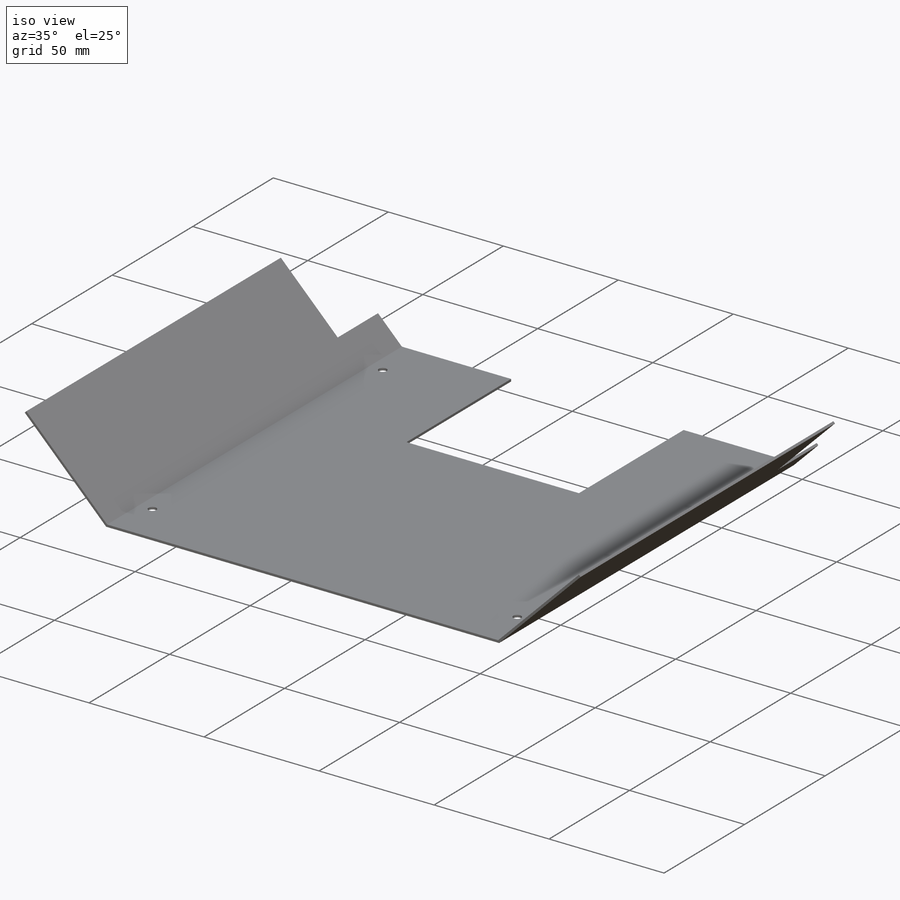
[diagram: iso view]
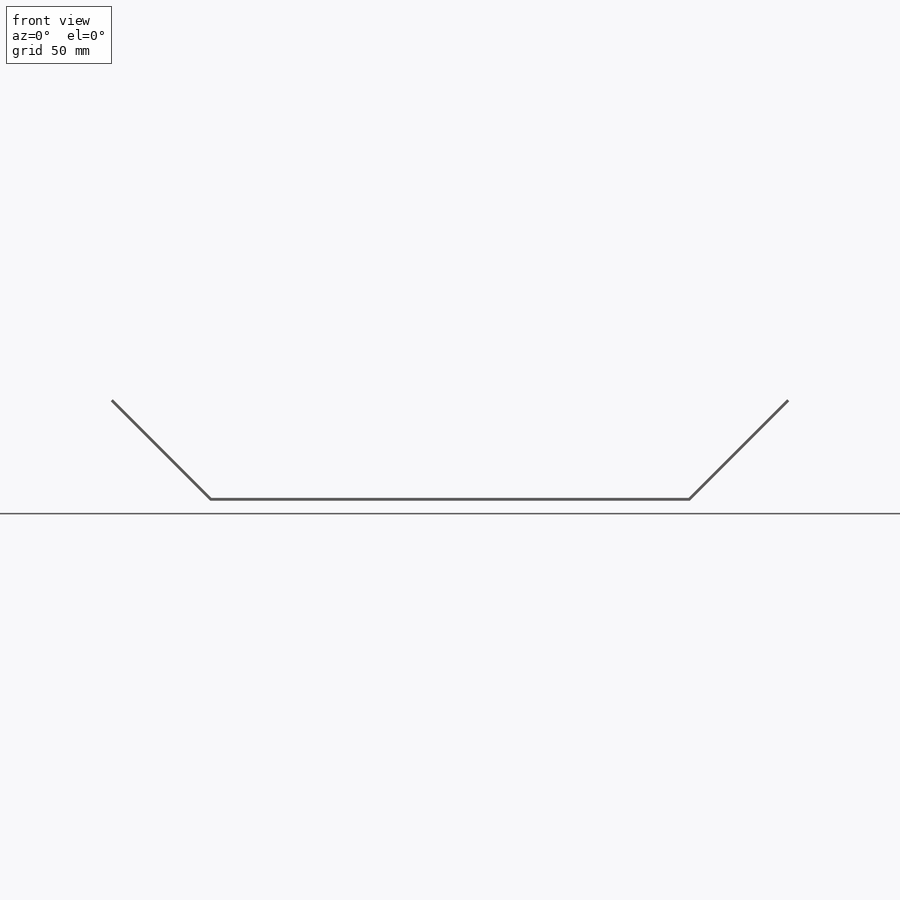
[diagram: front view]
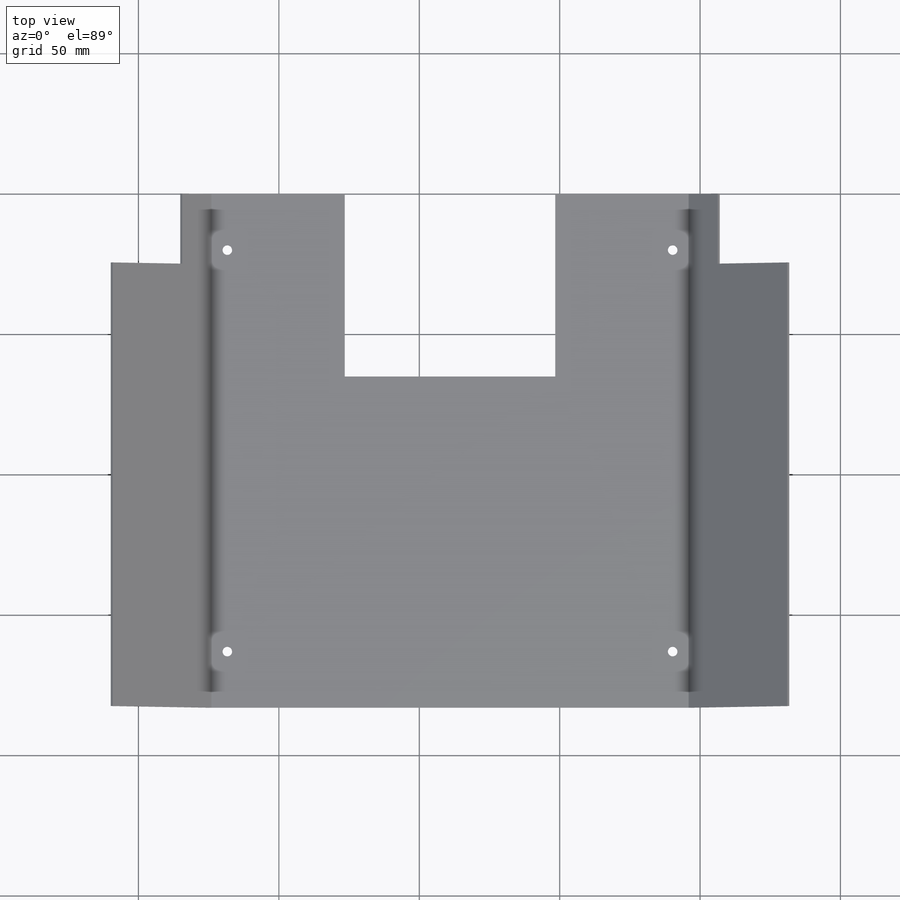
[diagram: top view]
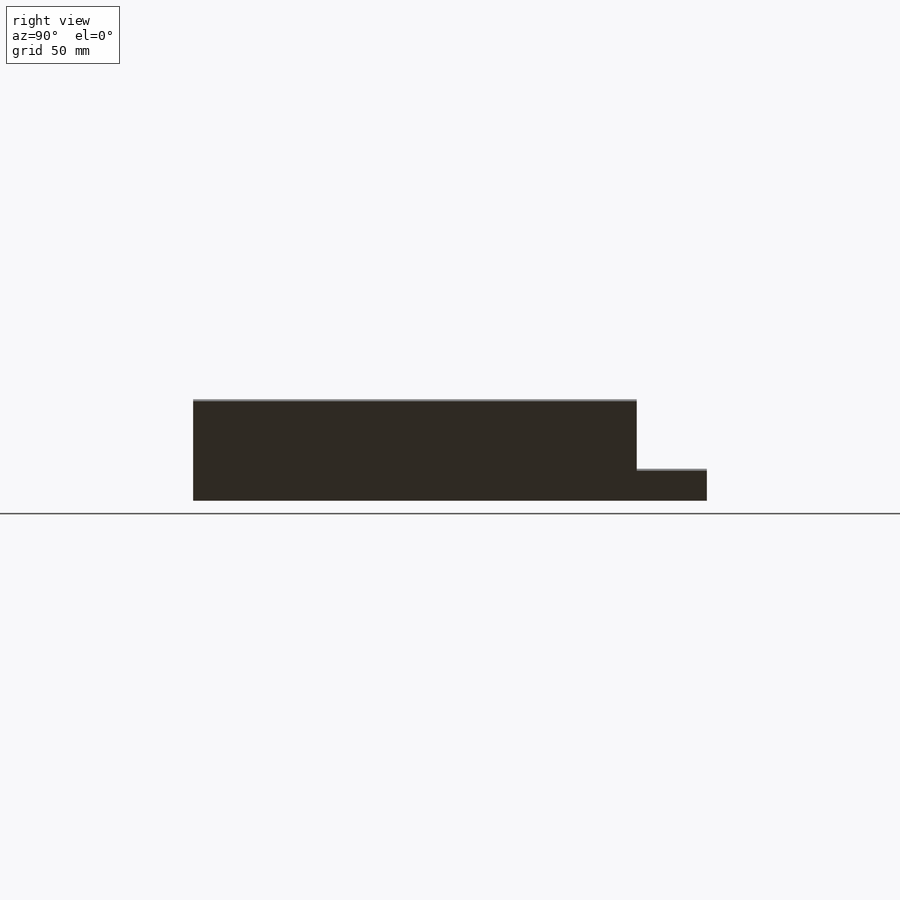
[diagram: right view]
SOLIDWORKS PART (.sldprt)
format: sldprt  version: not decoded by parser v0  size: 230,912 bytes
history: native  units: mm
features: sketch x7, plane x3, cut_extrude x3, material x1, hole x1 (+13 scaffold rows collapsed)
feature tree (28):
  scaffold x13  (default folders/planes/origin — collapsed)
  material  "Matériau <non spécifié>"
  plane  "Plan de face"
  plane  "Plan de dessus"
  plane  "Plan de droite"
  sketch  "Esquisse2"  dims[c1.D1=170.0mm c1.D2=49.658mm c1.D3=49.658mm c1.D4=35.114mm c1.D5=~35.113017mm c2.D1=183.0mm c2.D5=1.0mm c2.D6=1.0mm c2.D7=5.0mm]
  sketch  "Esquisse8"  dims[D1=47.5mm D2=47.5mm D3=65.0mm]
  cut_extrude  "Enlèv. mat.-Extru.2"  Depth=1mm
  sketch  "Esquisse12"  dims[D1=5.7mm D2=5.7mm D3=5.7mm D4=5.7mm D5=20.0mm D6=20.0mm D7=20.0mm D8=20.0mm]
  hole  "Dégagement M32"  Diameter=3.4mm Depth=1mm
  sketch  "Esquisse14"
  sketch  "Esquisse13"  dims[hole-wizard template sketch: 60 standard entries collapsed; hole parameters kept: c18.Profondeur du perçage jusqu'au prochain=1.0mm]
  sketch  "Esquisse15"  dims[D1=25.0mm D2=35.0mm D3=0.0mm]
  cut_extrude  "Enlèv. mat.-Extru.3"  [1 undecoded]
  sketch  "Esquisse16"  dims[D1=25.0mm D2=0.0mm D3=35.0mm]
  cut_extrude  "Enlèv. mat.-Extru.4"  [1 undecoded]
decode coverage: 8 of 11 modeling features carry decoded parameters
note: ~ marks probable driven/reference dimensions
note: 2 parameter values undecoded
note: suppression state not decoded; provenance and decode notes live in map.json
